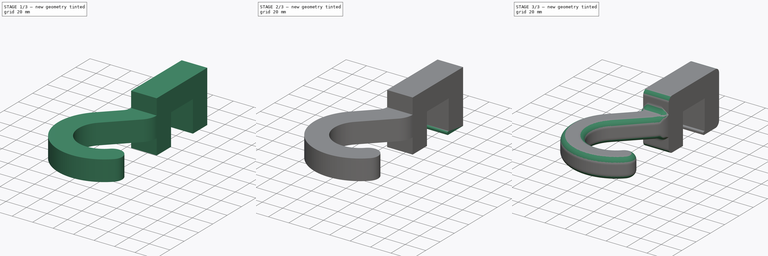
[diagram: build sequence overview — one tinted view per stage of 3, left to right]
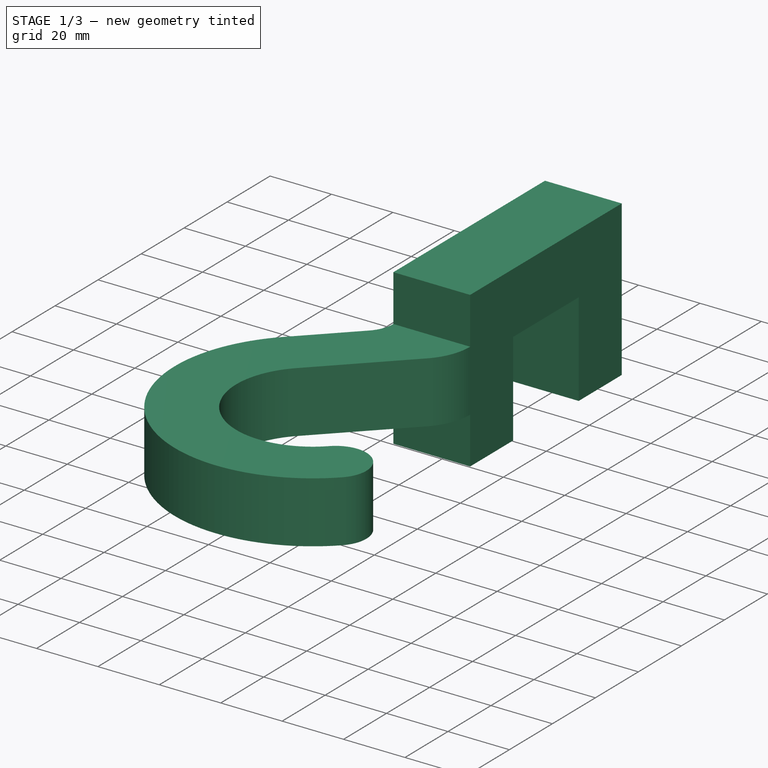
[diagram: stage 1 of 3 — iso view after this stage's code; geometry added in this stage tinted green]
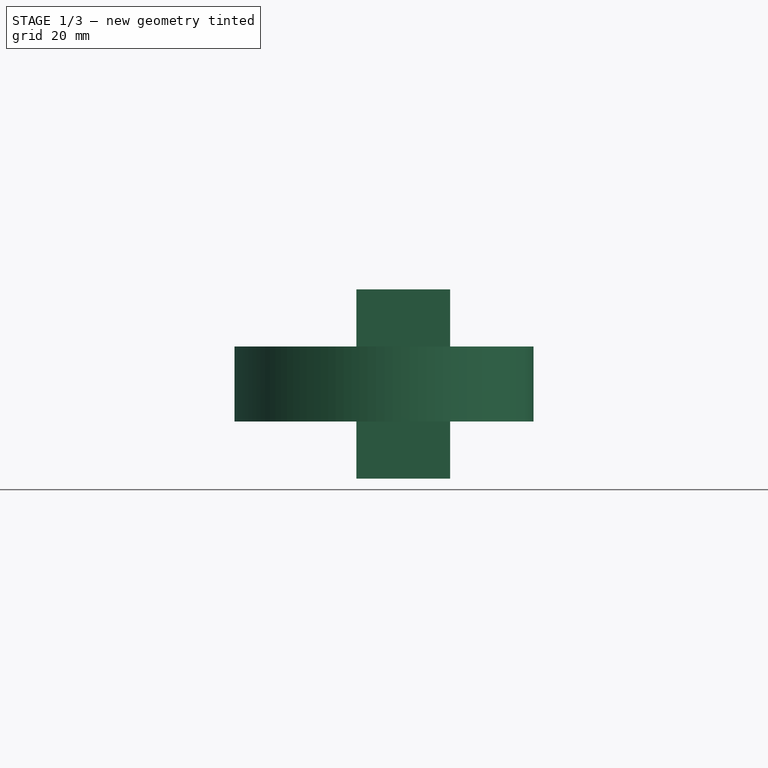
[diagram: stage 1 of 3 — front view after this stage's code; geometry added in this stage tinted green]
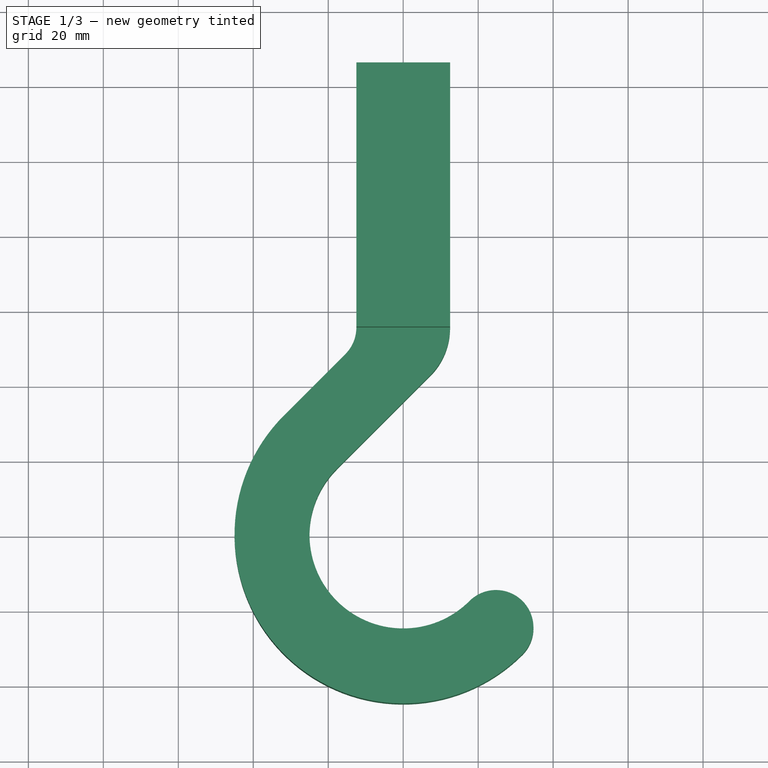
[diagram: stage 1 of 3 — top view after this stage's code; geometry added in this stage tinted green]
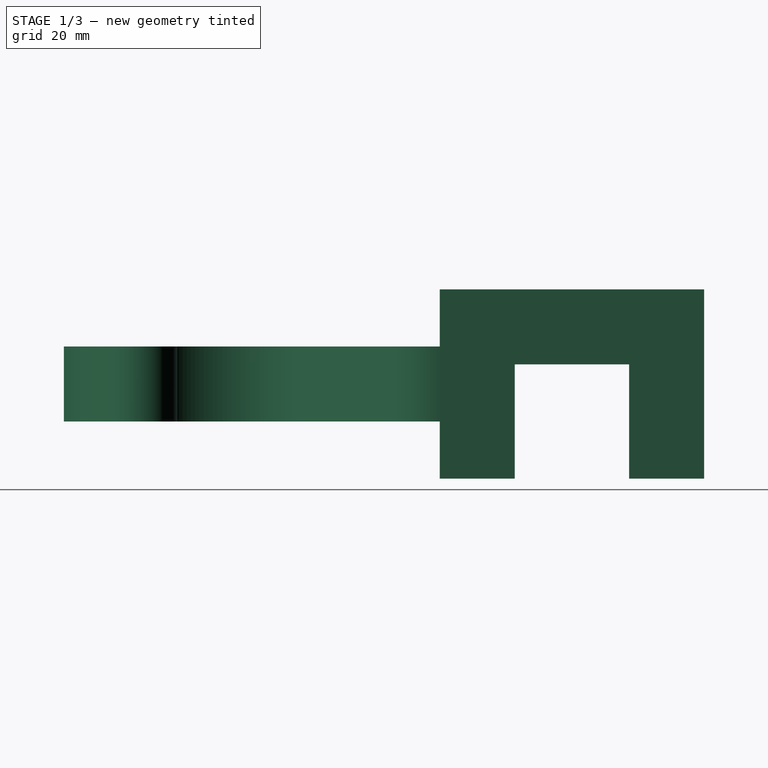
[diagram: stage 1 of 3 — right view after this stage's code; geometry added in this stage tinted green]
FCSTD DOCUMENT  (FreeCAD 0.19R22670 (Git))
Label: bicycle hook
License: All rights reserved
LicenseURL: http://en.wikipedia.org/wiki/All_rights_reserved
objects: Sketcher::SketchObject×4, PartDesign::Fillet×4, PartDesign::Pad×3, Spreadsheet::Sheet×1, PartDesign::Pocket×1, PartDesign::Body×1
note: 21 computed .brp shape members not serialized (recipe doc carries the construction recipe); baked Part::Feature solids carry a one-line shape summary decoded from their .brp

FEATURE [Spreadsheet::Sheet] Spreadsheet  label="dim"
  cells = A1=profile_x; B1(profile_x)=30.5; A2=profile_y; B2(profile_y)=30.5; A3=profile_depth; B3(profile_depth)=25; A4=profile_wall; B4(profile_wall)=20; A5=profile_over; B5(profile_over)=2; A6=profile_over_wall; B6(profile_over_wall)=3; A8=hook_r; B8(hook_r)=25; A9=hook_wall; B9(hook_wall)=20
FEATURE [Sketcher::SketchObject] Sketch
  MapMode = 5
  Support = -> [XY_Plane]
  expr: Constraints[21] = <<dim>>.profile_y + 2 * <<dim>>.profile_wall
  expr: Constraints[19] = <<dim>>.profile_depth
  expr: Constraints[1] = <<dim>>.hook_r
  expr: Constraints[3] = <<dim>>.hook_r + <<dim>>.hook_wall
  sketch-geometry (11):
    g0: ArcOfCircle CenterX=0 CenterY=0 CenterZ=0 NormalX=0 NormalY=0 NormalZ=1 AngleXU=0 Radius=25 StartAngle=2.35619 EndAngle=5.49779
    g1: ArcOfCircle CenterX=0 CenterY=0 CenterZ=0 NormalX=0 NormalY=0 NormalZ=1 AngleXU=0 Radius=45 StartAngle=2.35619 EndAngle=5.49779
    g2: LineSegment StartX=-12.5 StartY=125.782 StartZ=0 EndX=12.5 EndY=125.782 EndZ=0
    g3: LineSegment StartX=12.5 StartY=125.782 StartZ=0 EndX=12.5 EndY=55.2817 EndZ=0
    g4: LineSegment StartX=-12.5 StartY=55.2817 StartZ=0 EndX=-12.5 EndY=125.782 EndZ=0
    g5: ArcOfCircle CenterX=24.7487 CenterY=-24.7487 CenterZ=0 NormalX=0 NormalY=0 NormalZ=1 AngleXU=0 Radius=10 StartAngle=5.49779 EndAngle=8.63938
    g6: LineSegment StartX=-31.8198 StartY=31.8198 StartZ=0 EndX=-15.4289 EndY=48.2107 EndZ=0
    g7: LineSegment StartX=7.24874 StartY=42.6041 StartZ=0 EndX=-17.6777 EndY=17.6777 EndZ=0
    g8: ArcOfCircle CenterX=-22.5 CenterY=55.2817 CenterZ=0 NormalX=0 NormalY=0 NormalZ=1 AngleXU=0 Radius=10 StartAngle=5.49779 EndAngle=6.28319
    g9: ArcOfCircle CenterX=-5.42893 CenterY=55.2817 CenterZ=0 NormalX=0 NormalY=0 NormalZ=1 AngleXU=0 Radius=17.9289 StartAngle=5.49779 EndAngle=6.28319
    g10: LineSegment [constr] StartX=0 StartY=0 StartZ=0 EndX=24.7487 EndY=-24.7487 EndZ=0
  constraints (27):
    c: Coincident(g0,g-1)
    c: Radius(g0) = 25
    c: Coincident(g1,g0)
    c: Radius(g1) = 45
    c: Coincident(g2,g3)
    c: Coincident(g4,g2)
    c: Vertical(g3)
    c: Vertical(g4)
    c: Coincident(g5,g1)
    c: Angle(g5) = 3.14159
    c: Tangent(g5,g0) = 1.5708
    c: Angle(g1) = 3.14159
    c: Angle(g0) = 3.14159
    c: Tangent(g7,g0) = -1.5708
    c: Tangent(g4,g8) = -1.5708
    c: Tangent(g6,g8) = -1.5708
    c: Tangent(g3,g9) = 1.5708
    c: Tangent(g7,g9) = 1.5708
    c: Symmetric(g2,g2,g-2)
    c: DistanceX(g2,g2) = 25
    c: Horizontal(g4,g3)
    c: DistanceY(g3,g3) = 70.5
    c: Tangent(g1,g6) = 1.5708
    c: Coincident(g10,g0)
    c: Coincident(g10,g5)
    c: Angle(g10,g-2) = 2.35619
    c: Radius(g8) = 10
FEATURE [PartDesign::Pad] Pad
  Direction = (1,1,1)
  Length = 20
  Length2 = 100
  Midplane = true
  Profile = -> Sketch
  Refine = true
  Type = 0
  expr: Length = <<dim>>.hook_wall
FEATURE [Sketcher::SketchObject] Sketch001
  ExternalGeometry = -> [Pad]
  MapMode = 5
  Support = -> [XY_Plane]
  sketch-geometry (4):
    g0: LineSegment StartX=-12.5 StartY=125.782 StartZ=0 EndX=12.5 EndY=125.782 EndZ=0
    g1: LineSegment StartX=12.5 StartY=125.782 StartZ=0 EndX=12.5 EndY=55.2817 EndZ=0
    g2: LineSegment StartX=12.5 StartY=55.2817 StartZ=0 EndX=-12.5 EndY=55.2817 EndZ=0
    g3: LineSegment StartX=-12.5 StartY=55.2817 StartZ=0 EndX=-12.5 EndY=125.782 EndZ=0
  constraints (10):
    c: Coincident(g0,g1)
    c: Coincident(g1,g2)
    c: Coincident(g2,g3)
    c: Coincident(g3,g0)
    c: Horizontal(g0)
    c: Horizontal(g2)
    c: Vertical(g1)
    c: Vertical(g3)
    c: Coincident(g0,g-3)
    c: Coincident(g1,g-4)
FEATURE [PartDesign::Pad] Pad001
  BaseFeature = -> Pad
  Direction = (1,1,1)
  Length = 50.5
  Length2 = 100
  Midplane = true
  Profile = -> Sketch001
  Refine = true
  Type = 0
  expr: Length = <<dim>>.profile_x + <<dim>>.profile_wall
FEATURE [Sketcher::SketchObject] Sketch002
  ExternalGeometry = -> [Pad001]
  MapMode = 5
  Placement = pos=(12.5,0,0) rot=(0.57735,0.57735,0.57735;2.0944rad)
  Support = -> [Pad001]
  expr: Constraints[11] = <<dim>>.profile_x
  expr: Constraints[10] = <<dim>>.profile_y
  expr: Constraints[9] = <<dim>>.profile_wall
  sketch-geometry (4):
    g0: LineSegment StartX=75.2817 StartY=5.25 StartZ=0 EndX=105.782 EndY=5.25 EndZ=0
    g1: LineSegment StartX=105.782 StartY=5.25 StartZ=0 EndX=105.782 EndY=-25.25 EndZ=0
    g2: LineSegment StartX=105.782 StartY=-25.25 StartZ=0 EndX=75.2817 EndY=-25.25 EndZ=0
    g3: LineSegment StartX=75.2817 StartY=-25.25 StartZ=0 EndX=75.2817 EndY=5.25 EndZ=0
  constraints (12):
    c: Coincident(g0,g1)
    c: Coincident(g1,g2)
    c: Coincident(g2,g3)
    c: Coincident(g3,g0)
    c: Horizontal(g0)
    c: Horizontal(g2)
    c: Vertical(g1)
    c: Vertical(g3)
    c: Horizontal(g-4,g1)
    c: DistanceX(g1,g-4) = 20
    c: DistanceX(g0,g0) = 30.5
    c: DistanceY(g1,g1) = 30.5
FEATURE [PartDesign::Pocket] Pocket
  BaseFeature = -> Pad001
  Length = 5
  Length2 = 100
  Midplane = true
  Profile = -> Sketch002
  Refine = true
  Type = 1
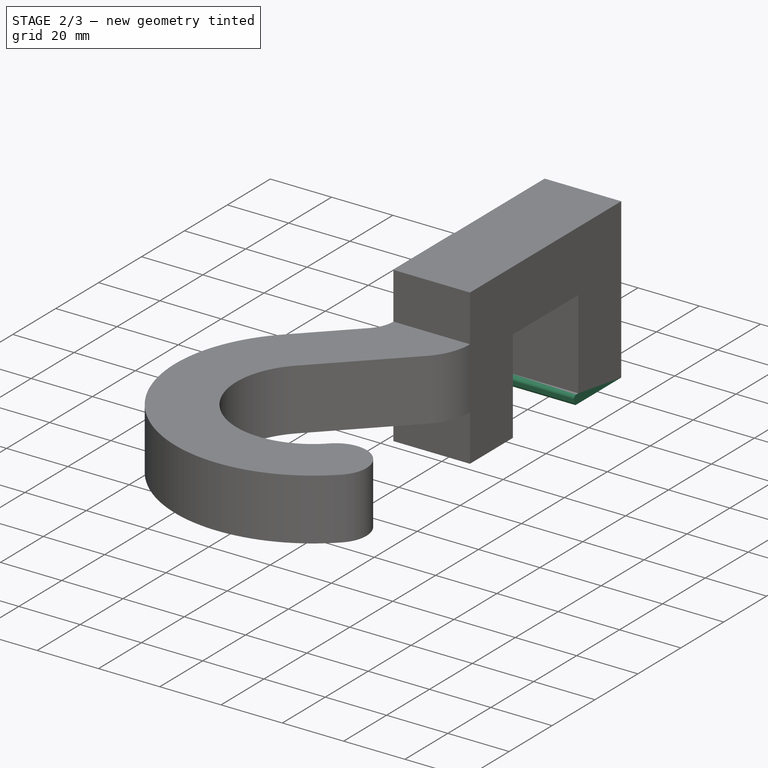
[diagram: stage 2 of 3 — iso view after this stage's code; geometry added in this stage tinted green]
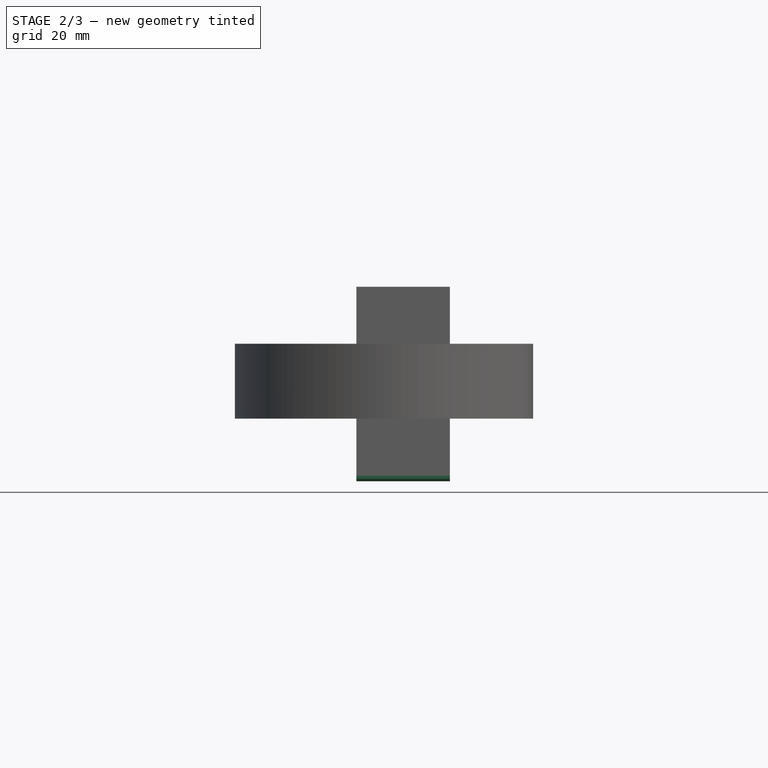
[diagram: stage 2 of 3 — front view after this stage's code; geometry added in this stage tinted green]
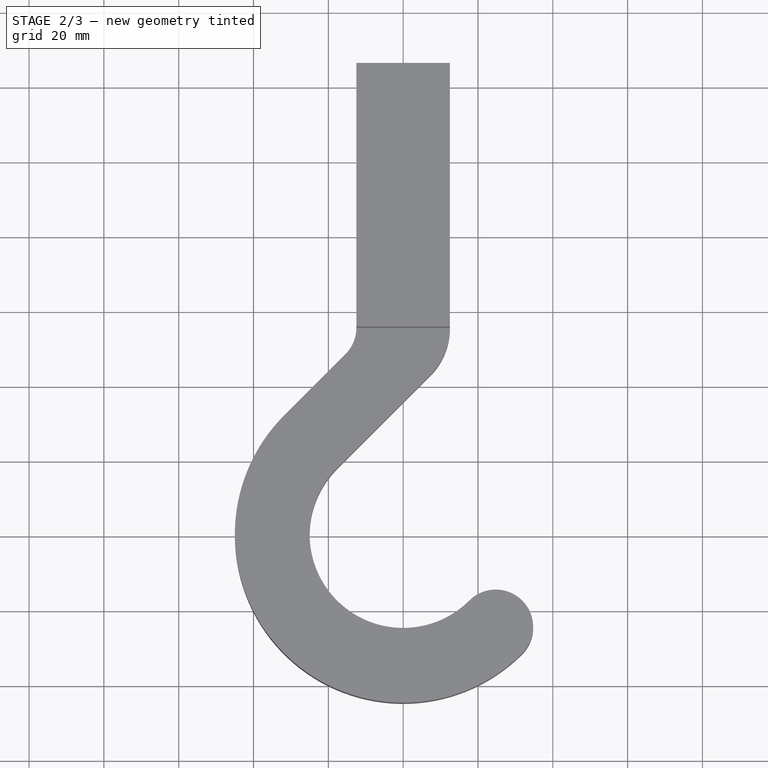
[diagram: stage 2 of 3 — top view after this stage's code; geometry added in this stage tinted green]
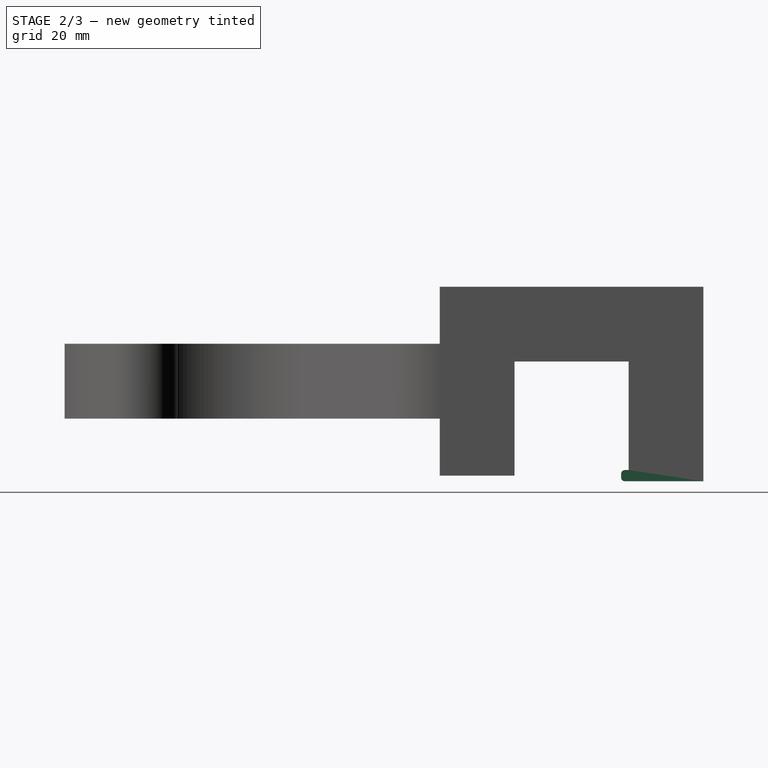
[diagram: stage 2 of 3 — right view after this stage's code; geometry added in this stage tinted green]
FEATURE [Sketcher::SketchObject] Sketch003
  ExternalGeometry = -> [Pocket]
  MapMode = 5
  Placement = pos=(0,0,-25.25) rot=(1,0,0;3.14159rad)
  Support = -> [Pocket]
  expr: Constraints[10] = <<dim>>.profile_over
  sketch-geometry (4):
    g0: LineSegment StartX=-12.5 StartY=-125.782 StartZ=0 EndX=12.5 EndY=-125.782 EndZ=0
    g1: LineSegment StartX=12.5 StartY=-125.782 StartZ=0 EndX=12.5 EndY=-103.782 EndZ=0
    g2: LineSegment StartX=12.5 StartY=-103.782 StartZ=0 EndX=-12.5 EndY=-103.782 EndZ=0
    g3: LineSegment StartX=-12.5 StartY=-103.782 StartZ=0 EndX=-12.5 EndY=-125.782 EndZ=0
  constraints (11):
    c: Coincident(g0,g1)
    c: Coincident(g1,g2)
    c: Coincident(g2,g3)
    c: Coincident(g3,g0)
    c: Horizontal(g0)
    c: Horizontal(g2)
    c: Vertical(g1)
    c: Vertical(g3)
    c: Coincident(g0,g-3)
    c: Vertical(g-4,g1)
    c: DistanceY(g-4,g1) = 2
FEATURE [PartDesign::Pad] Pad002
  BaseFeature = -> Pocket
  Direction = (1,1,1)
  Length = 3
  Length2 = 100
  Midplane = true
  Profile = -> Sketch003
  Refine = true
  Type = 0
  expr: Length = <<dim>>.profile_over_wall
FEATURE [PartDesign::Fillet] Fillet
  Base = -> Pad002 [Edge47,Edge51]
  BaseFeature = -> Pad002
  Radius = 1
  Refine = true
  SupportTransform = false
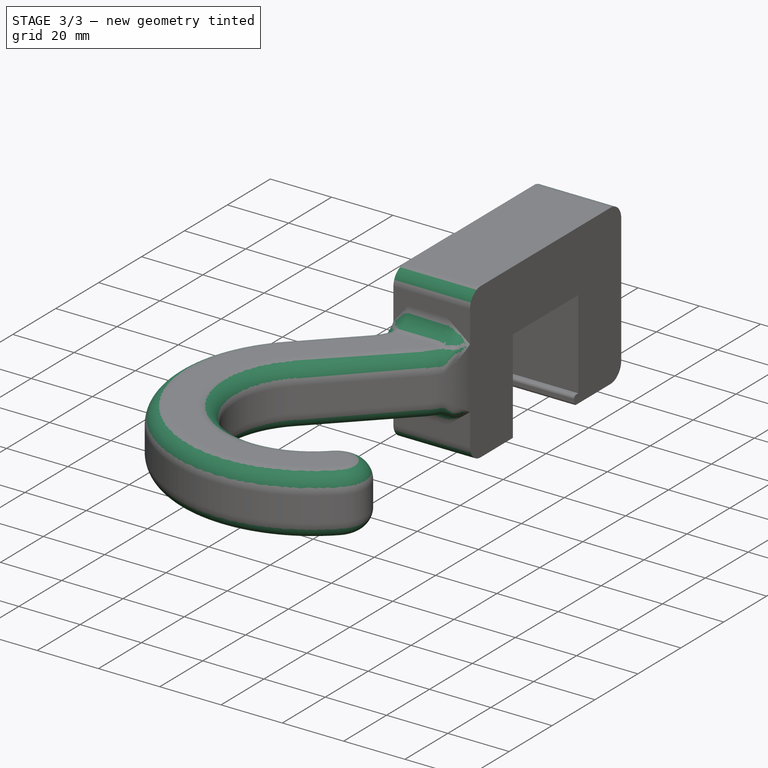
[diagram: stage 3 of 3 — iso view after this stage's code; geometry added in this stage tinted green]
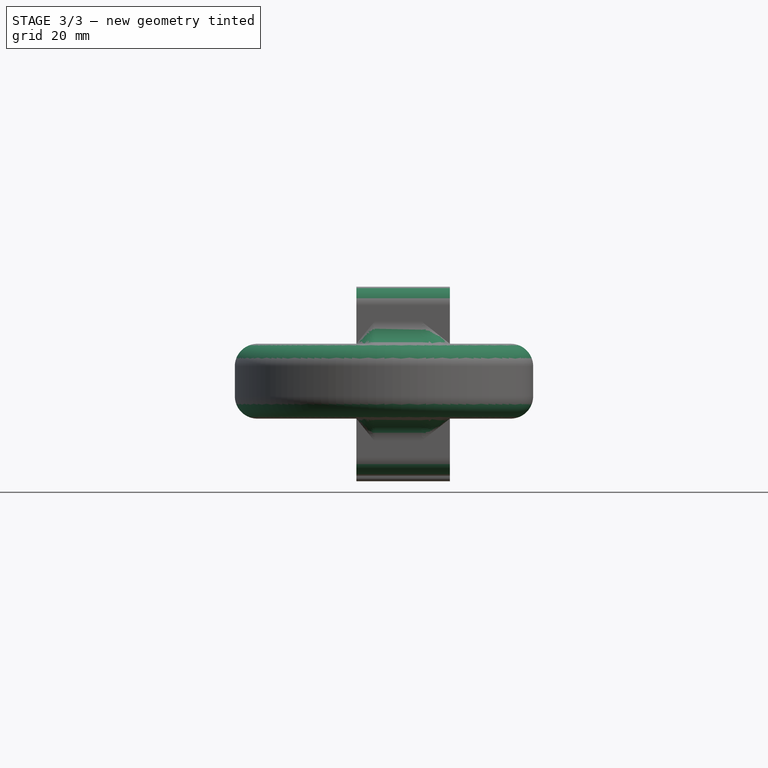
[diagram: stage 3 of 3 — front view after this stage's code; geometry added in this stage tinted green]
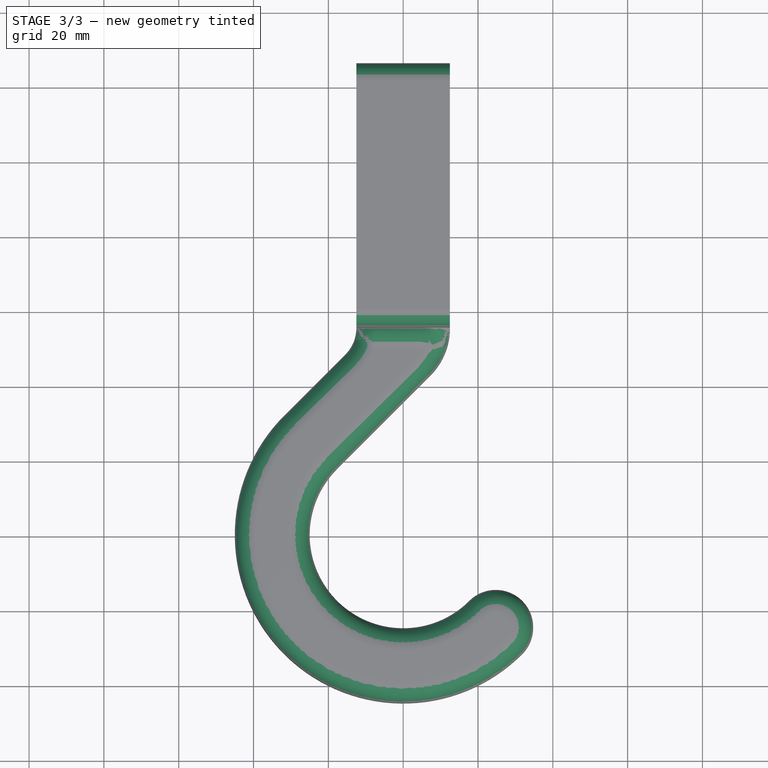
[diagram: stage 3 of 3 — top view after this stage's code; geometry added in this stage tinted green]
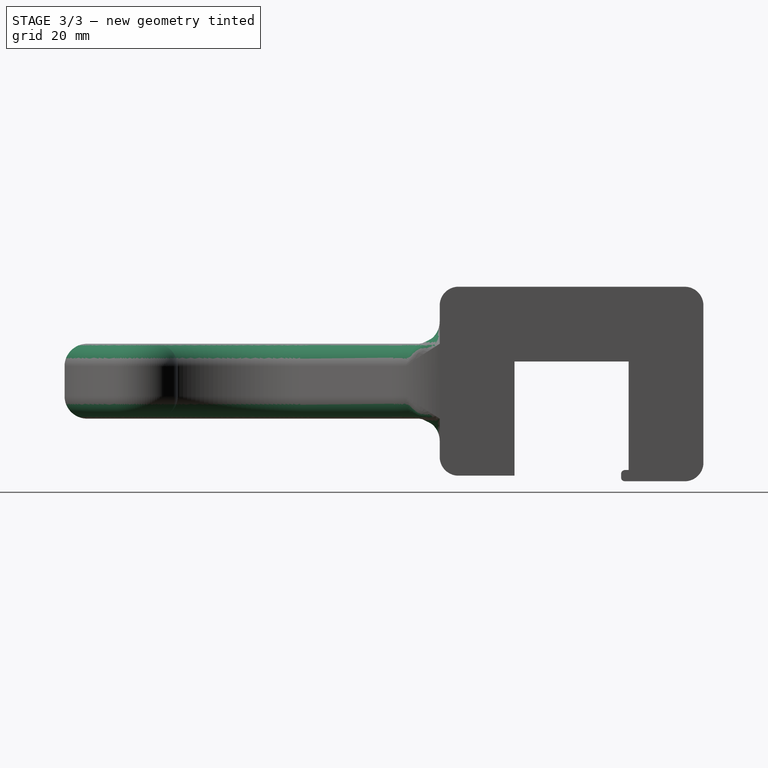
[diagram: stage 3 of 3 — right view after this stage's code; geometry added in this stage tinted green]
FEATURE [PartDesign::Fillet] Fillet001
  Base = -> Fillet [Face20]
  BaseFeature = -> Fillet
  Radius = 6
  Refine = true
  SupportTransform = false
FEATURE [PartDesign::Fillet] Fillet002
  Base = -> Fillet001 [Face4]
  BaseFeature = -> Fillet001
  Radius = 6
  Refine = true
  SupportTransform = false
FEATURE [PartDesign::Fillet] Fillet003
  Base = -> Fillet002 [Edge60,Edge54,Edge67,Edge64]
  BaseFeature = -> Fillet002
  Radius = 5
  Refine = true
  SupportTransform = false
FEATURE [PartDesign::Body] Body
  Group = -> [Sketch,Pad,Sketch001,Pad001,Sketch002,Pocket,Sketch003,Pad002,Fillet,Fillet001,Fillet002,Fillet003]
  Origin = -> Origin
  Tip = -> Fillet003
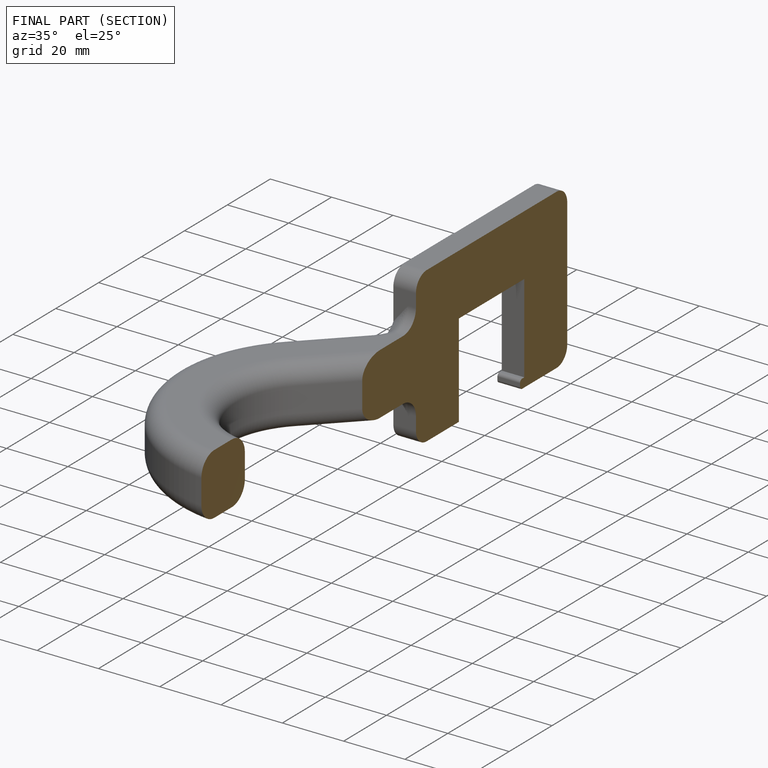
[diagram: finished part — half-section view (interior)]
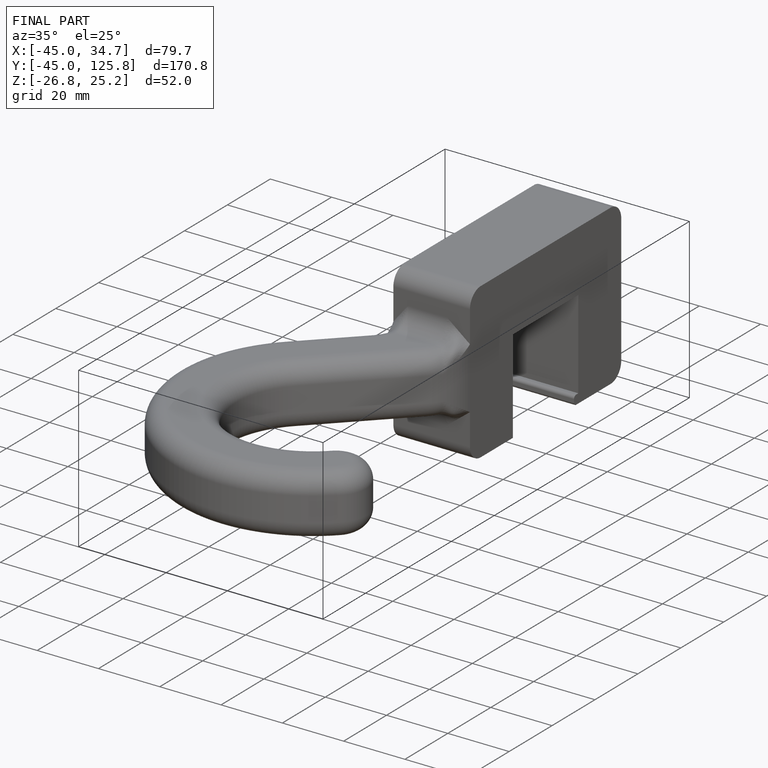
[diagram: finished part — iso view with bounding-box wireframe]
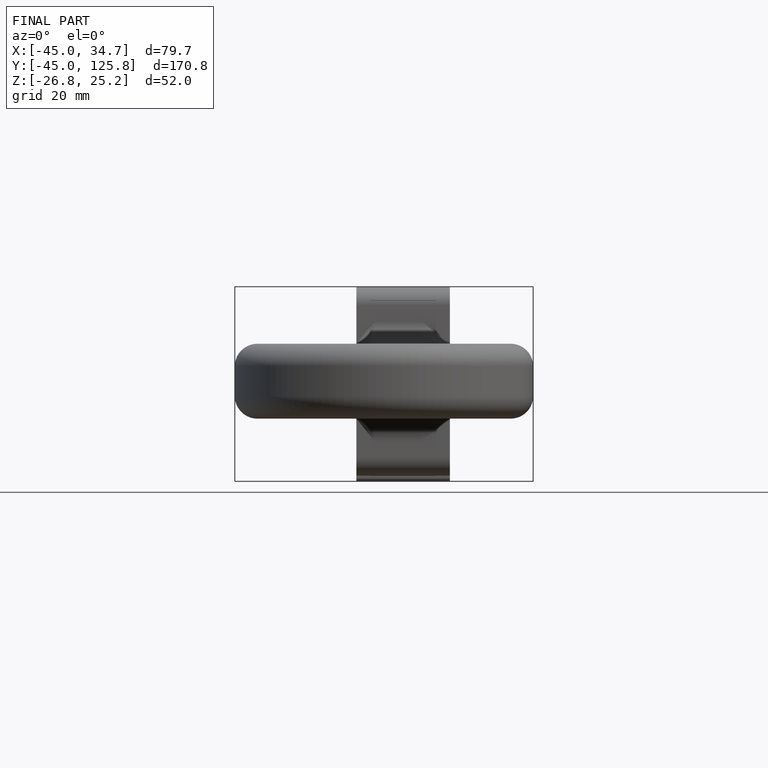
[diagram: finished part — front view with bounding-box wireframe]
